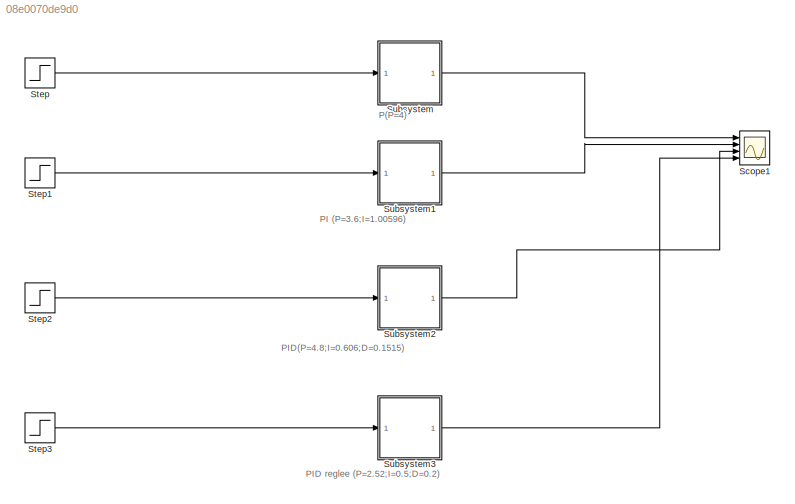
MODEL slx_08e0070de9d0
KIND model
CONFIG AbsTol = auto
CONFIG EnableMultiTasking = off
CONFIG FixedStep = auto
CONFIG MaxStep = 0.01
CONFIG MinStep = auto
CONFIG RelTol = 1e-3
CONFIG SampleTimeConstraint = Unconstrained
CONFIG Solver = VariableStepAuto
CONFIG SolverName = VariableStepAuto
CONFIG StartTime = 0.0
CONFIG StopTime = 20
BLOCK [Scope] Scope1
  Floating = off
  NumInputPorts = 4
  Ports = [4]
  ScopeSpecificationString = Simulink.scopes.TimeScopeBlockCfg('CurrentConfiguration', extmgr.ConfigurationSet(extmgr.Configuration('Core','General UI',true),extmgr.Configuration('Core','Source UI',true),extmgr.Configuration('Sources','WiredSimulink',true,'DataLoggingVariableName','ScopeData1'),extmgr.Configuration('Visuals','Time Domain',true,'SerializedDisplays',{struct('MinYLimReal','-0.5','MaxYLimReal','4.5','YLabelReal',...<+1551ch>
BLOCK [Step] Step
  Before = 1
  SampleTime = 0
BLOCK [Step] Step1
  Before = 1
  SampleTime = 0
BLOCK [Step] Step2
  Before = 1
  SampleTime = 0
BLOCK [Step] Step3
  Before = 1
  SampleTime = 0
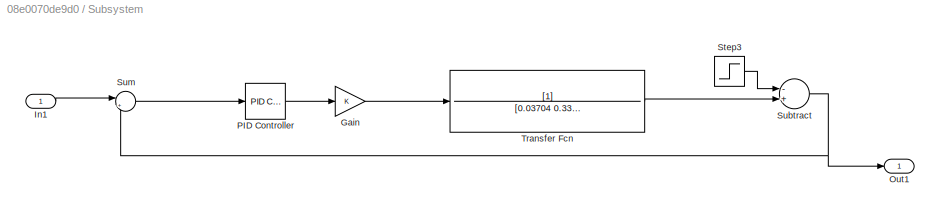
BLOCK [SubSystem] Subsystem
  Ports = [1, 1]
  RequestExecContextInheritance = off
BLOCK [Gain] Subsystem/Gain
  OutDataTypeStr = Inherit: Inherit via internal rule
  ParamDataTypeStr = Inherit: Inherit via internal rule
  SaturateOnIntegerOverflow = off
BLOCK [Inport] Subsystem/In1
  IconDisplay = Port number
BLOCK [Outport] Subsystem/Out1
  IconDisplay = Port number
BLOCK [Reference] Subsystem/PID Controller  REF=simulink/Continuous/PID Controller
  Ports = [1, 1]
  SourceBlock = simulink/Continuous/PID Controller
  SourceProductBaseCode = SL
  SourceProductName = Simulink
  SourceType = PID 1dof
BLOCK [Step] Subsystem/Step3
  After = 0.1
  SampleTime = 0
  Time = 10
BLOCK [Sum] Subsystem/Subtract
  InputSameDT = off
  Inputs = -+
  OutDataTypeStr = Inherit: Inherit via internal rule
  Ports = [2, 1]
  SaturateOnIntegerOverflow = off
BLOCK [Sum] Subsystem/Sum
  IconShape = round
  InputSameDT = off
  Inputs = |+-
  OutDataTypeStr = Inherit: Inherit via internal rule
  Ports = [2, 1]
  SaturateOnIntegerOverflow = off
BLOCK [TransferFcn] Subsystem/Transfer Fcn
  Denominator = [0.03704 0.3333 1 1]
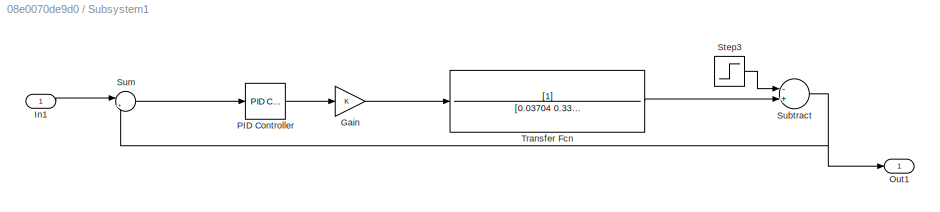
BLOCK [SubSystem] Subsystem1
  Ports = [1, 1]
  RequestExecContextInheritance = off
BLOCK [Gain] Subsystem1/Gain
  OutDataTypeStr = Inherit: Inherit via internal rule
  ParamDataTypeStr = Inherit: Inherit via internal rule
  SaturateOnIntegerOverflow = off
BLOCK [Inport] Subsystem1/In1
  IconDisplay = Port number
BLOCK [Outport] Subsystem1/Out1
  IconDisplay = Port number
BLOCK [Reference] Subsystem1/PID Controller  REF=simulink/Continuous/PID Controller
  Ports = [1, 1]
  SourceBlock = simulink/Continuous/PID Controller
  SourceProductBaseCode = SL
  SourceProductName = Simulink
  SourceType = PID 1dof
BLOCK [Step] Subsystem1/Step3
  After = 0.1
  SampleTime = 0
  Time = 10
BLOCK [Sum] Subsystem1/Subtract
  InputSameDT = off
  Inputs = -+
  OutDataTypeStr = Inherit: Inherit via internal rule
  Ports = [2, 1]
  SaturateOnIntegerOverflow = off
BLOCK [Sum] Subsystem1/Sum
  IconShape = round
  InputSameDT = off
  Inputs = |+-
  OutDataTypeStr = Inherit: Inherit via internal rule
  Ports = [2, 1]
  SaturateOnIntegerOverflow = off
BLOCK [TransferFcn] Subsystem1/Transfer Fcn
  Denominator = [0.03704 0.3333 1 1]
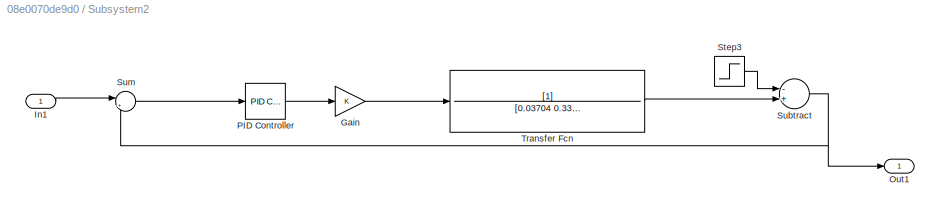
BLOCK [SubSystem] Subsystem2
  Ports = [1, 1]
  RequestExecContextInheritance = off
BLOCK [Gain] Subsystem2/Gain
  OutDataTypeStr = Inherit: Inherit via internal rule
  ParamDataTypeStr = Inherit: Inherit via internal rule
  SaturateOnIntegerOverflow = off
BLOCK [Inport] Subsystem2/In1
  IconDisplay = Port number
BLOCK [Outport] Subsystem2/Out1
  IconDisplay = Port number
BLOCK [Reference] Subsystem2/PID Controller  REF=simulink/Continuous/PID Controller
  Ports = [1, 1]
  SourceBlock = simulink/Continuous/PID Controller
  SourceProductBaseCode = SL
  SourceProductName = Simulink
  SourceType = PID 1dof
BLOCK [Step] Subsystem2/Step3
  After = 0.1
  SampleTime = 0
  Time = 10
BLOCK [Sum] Subsystem2/Subtract
  InputSameDT = off
  Inputs = -+
  OutDataTypeStr = Inherit: Inherit via internal rule
  Ports = [2, 1]
  SaturateOnIntegerOverflow = off
BLOCK [Sum] Subsystem2/Sum
  IconShape = round
  InputSameDT = off
  Inputs = |+-
  OutDataTypeStr = Inherit: Inherit via internal rule
  Ports = [2, 1]
  SaturateOnIntegerOverflow = off
BLOCK [TransferFcn] Subsystem2/Transfer Fcn
  Denominator = [0.03704 0.3333 1 1]
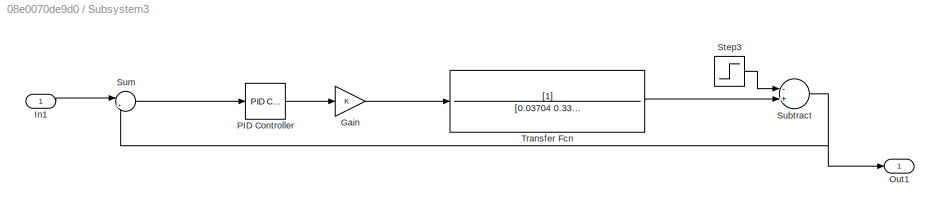
BLOCK [SubSystem] Subsystem3
  Ports = [1, 1]
  RequestExecContextInheritance = off
BLOCK [Gain] Subsystem3/Gain
  OutDataTypeStr = Inherit: Inherit via internal rule
  ParamDataTypeStr = Inherit: Inherit via internal rule
  SaturateOnIntegerOverflow = off
BLOCK [Inport] Subsystem3/In1
  IconDisplay = Port number
BLOCK [Outport] Subsystem3/Out1
  IconDisplay = Port number
BLOCK [Reference] Subsystem3/PID Controller  REF=simulink/Continuous/PID Controller
  Ports = [1, 1]
  SourceBlock = simulink/Continuous/PID Controller
  SourceProductBaseCode = SL
  SourceProductName = Simulink
  SourceType = PID 1dof
BLOCK [Step] Subsystem3/Step3
  After = 0.1
  SampleTime = 0
  Time = 10
BLOCK [Sum] Subsystem3/Subtract
  InputSameDT = off
  Inputs = -+
  OutDataTypeStr = Inherit: Inherit via internal rule
  Ports = [2, 1]
  SaturateOnIntegerOverflow = off
BLOCK [Sum] Subsystem3/Sum
  IconShape = round
  InputSameDT = off
  Inputs = |+-
  OutDataTypeStr = Inherit: Inherit via internal rule
  Ports = [2, 1]
  SaturateOnIntegerOverflow = off
BLOCK [TransferFcn] Subsystem3/Transfer Fcn
  Denominator = [0.03704 0.3333 1 1]
ANNOTATION (root): P(P=4)
ANNOTATION (root): PI (P=3.6;I=1.00596)
ANNOTATION (root): PID reglee (P=2.52;I=0.5;D=0.2)
ANNOTATION (root): PID(P=4.8;I=0.606;D=0.1515)
LINE Step1:1 -> Subsystem1:1
LINE Step2:1 -> Subsystem2:1
LINE Step3:1 -> Subsystem3:1
LINE Step:1 -> Subsystem:1
LINE Subsystem/Gain:1 -> Subsystem/Transfer Fcn:1
LINE Subsystem/In1:1 -> Subsystem/Sum:1
LINE Subsystem/PID Controller:1 -> Subsystem/Gain:1
LINE Subsystem/Step3:1 -> Subsystem/Subtract:1
NET Subsystem/Subtract:1 -> Subsystem/Out1:1, Subsystem/Sum:2
LINE Subsystem/Sum:1 -> Subsystem/PID Controller:1
LINE Subsystem/Transfer Fcn:1 -> Subsystem/Subtract:2
LINE Subsystem1/Gain:1 -> Subsystem1/Transfer Fcn:1
LINE Subsystem1/In1:1 -> Subsystem1/Sum:1
LINE Subsystem1/PID Controller:1 -> Subsystem1/Gain:1
LINE Subsystem1/Step3:1 -> Subsystem1/Subtract:1
NET Subsystem1/Subtract:1 -> Subsystem1/Out1:1, Subsystem1/Sum:2
LINE Subsystem1/Sum:1 -> Subsystem1/PID Controller:1
LINE Subsystem1/Transfer Fcn:1 -> Subsystem1/Subtract:2
LINE Subsystem1:1 -> Scope1:2
LINE Subsystem2/Gain:1 -> Subsystem2/Transfer Fcn:1
LINE Subsystem2/In1:1 -> Subsystem2/Sum:1
LINE Subsystem2/PID Controller:1 -> Subsystem2/Gain:1
LINE Subsystem2/Step3:1 -> Subsystem2/Subtract:1
NET Subsystem2/Subtract:1 -> Subsystem2/Out1:1, Subsystem2/Sum:2
LINE Subsystem2/Sum:1 -> Subsystem2/PID Controller:1
LINE Subsystem2/Transfer Fcn:1 -> Subsystem2/Subtract:2
LINE Subsystem2:1 -> Scope1:3
LINE Subsystem3/Gain:1 -> Subsystem3/Transfer Fcn:1
LINE Subsystem3/In1:1 -> Subsystem3/Sum:1
LINE Subsystem3/PID Controller:1 -> Subsystem3/Gain:1
LINE Subsystem3/Step3:1 -> Subsystem3/Subtract:1
NET Subsystem3/Subtract:1 -> Subsystem3/Out1:1, Subsystem3/Sum:2
LINE Subsystem3/Sum:1 -> Subsystem3/PID Controller:1
LINE Subsystem3/Transfer Fcn:1 -> Subsystem3/Subtract:2
LINE Subsystem3:1 -> Scope1:4
LINE Subsystem:1 -> Scope1:1
note: NET lines group one-source signal fan-out (src -> all destinations, sorted); 1:1 wires keep LINE
